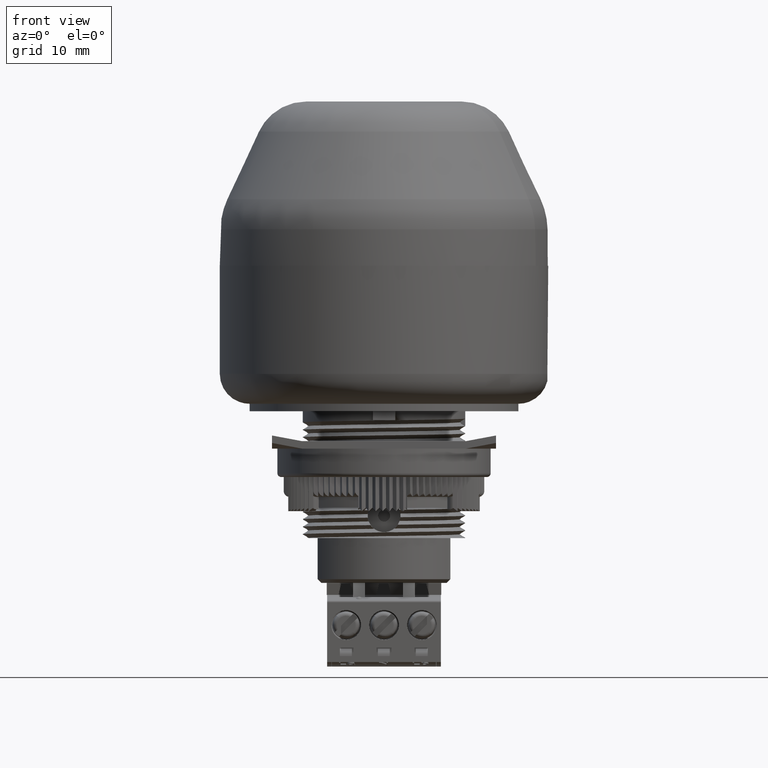
[diagram: clean part render]
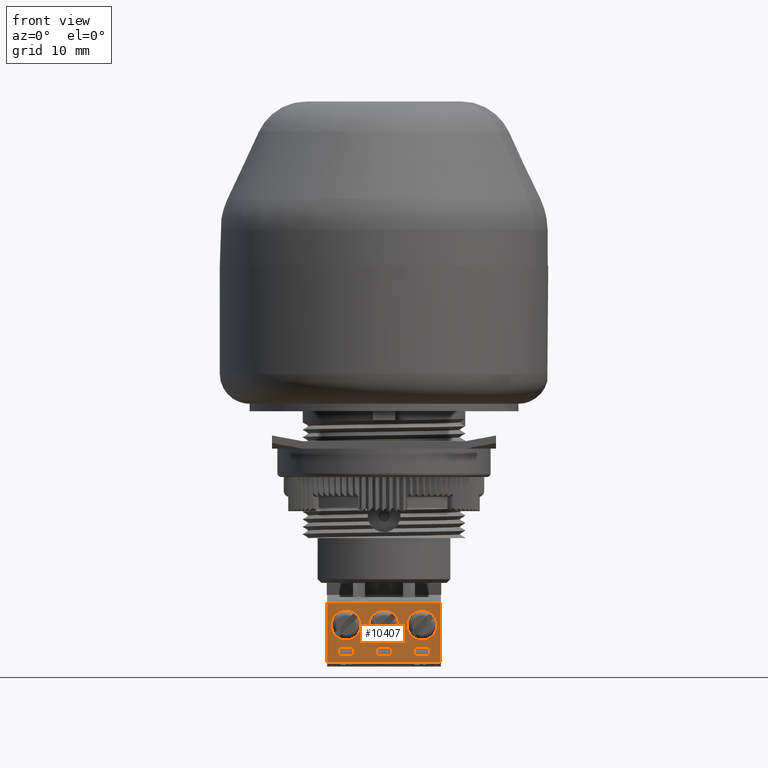
[diagram: same view with one face highlighted and labeled with its STEP entity id]
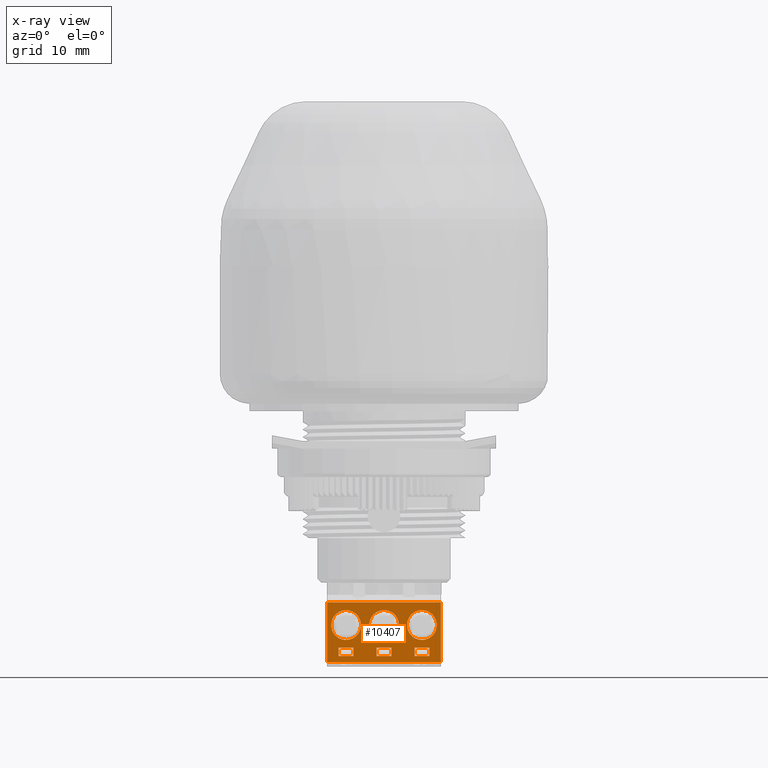
[diagram: x-ray of the same camera — body ghosted, the highlighted face saturated]
A machine part, front view. The second image highlights one B-rep face of the part: STEP entity #10407.
The next image is the same camera in x-ray: the body ghosted, the highlighted face saturated — about 0% of this face is hidden behind the body in this view.
In plain terms, the highlighted planar face has unit normal (0, -1, 0).
Its self-contained STEP definition (entity closure, byte-faithful):
#3848=LINE('',#50492,#7061);
#3856=LINE('',#50509,#7069);
#3864=LINE('',#50526,#7077);
#3953=LINE('',#51439,#7166);
#3955=LINE('',#51445,#7168);
#3956=LINE('',#51449,#7169);
#4190=LINE('',#52024,#7403);
#4191=LINE('',#52033,#7404);
#4192=LINE('',#52036,#7405);
#4193=LINE('',#52037,#7406);
#4194=LINE('',#52038,#7407);
#4195=LINE('',#52041,#7408);
#4196=LINE('',#52042,#7409);
#4197=LINE('',#52043,#7410);
#4198=LINE('',#52046,#7411);
#4199=LINE('',#52047,#7412);
#7061=VECTOR('',#38982,1.);
#7069=VECTOR('',#38992,1.);
#7077=VECTOR('',#39002,1.);
#7166=VECTOR('',#39291,1.);
#7168=VECTOR('',#39297,1.);
#7169=VECTOR('',#39302,1.);
#7403=VECTOR('',#39814,1.);
#7404=VECTOR('',#39823,1.);
#7405=VECTOR('',#39824,1.);
#7406=VECTOR('',#39825,1.);
#7407=VECTOR('',#39826,1.);
#7408=VECTOR('',#39827,1.);
#7409=VECTOR('',#39828,1.);
#7410=VECTOR('',#39829,1.);
#7411=VECTOR('',#39830,1.);
#7412=VECTOR('',#39831,1.);
#10407=ADVANCED_FACE('',(#12688,#12689,#12690,#12691,#12692,#12693,#12694),
#11938,.T.);
#11938=PLANE('',#34735);
#12688=FACE_BOUND('',#13503,.T.);
#12689=FACE_BOUND('',#13504,.T.);
#12690=FACE_BOUND('',#13505,.T.);
#12691=FACE_BOUND('',#13506,.T.);
#12692=FACE_BOUND('',#13507,.T.);
#12693=FACE_BOUND('',#13508,.T.);
#12694=FACE_BOUND('',#13509,.T.);
#13503=EDGE_LOOP('',(#18501,#18502,#18503,#18504));
#13504=EDGE_LOOP('',(#18505,#18506));
#13505=EDGE_LOOP('',(#18507,#18508));
#13506=EDGE_LOOP('',(#18509,#18510));
#13507=EDGE_LOOP('',(#18511,#18512,#18513,#18514));
#13508=EDGE_LOOP('',(#18515,#18516,#18517,#18518));
#13509=EDGE_LOOP('',(#18519,#18520,#18521,#18522));
#18501=ORIENTED_EDGE('',*,*,#29616,.T.);
#18502=ORIENTED_EDGE('',*,*,#29613,.T.);
#18503=ORIENTED_EDGE('',*,*,#29910,.T.);
#18504=ORIENTED_EDGE('',*,*,#29618,.F.);
#18505=ORIENTED_EDGE('',*,*,#29909,.F.);
#18506=ORIENTED_EDGE('',*,*,#29907,.F.);
#18507=ORIENTED_EDGE('',*,*,#29911,.F.);
#18508=ORIENTED_EDGE('',*,*,#29912,.F.);
#18509=ORIENTED_EDGE('',*,*,#29913,.F.);
#18510=ORIENTED_EDGE('',*,*,#29914,.F.);
#18511=ORIENTED_EDGE('',*,*,#29915,.F.);
#18512=ORIENTED_EDGE('',*,*,#29916,.F.);
#18513=ORIENTED_EDGE('',*,*,#29416,.F.);
#18514=ORIENTED_EDGE('',*,*,#29917,.F.);
#18515=ORIENTED_EDGE('',*,*,#29918,.F.);
#18516=ORIENTED_EDGE('',*,*,#29919,.F.);
#18517=ORIENTED_EDGE('',*,*,#29424,.F.);
#18518=ORIENTED_EDGE('',*,*,#29920,.F.);
#18519=ORIENTED_EDGE('',*,*,#29921,.F.);
#18520=ORIENTED_EDGE('',*,*,#29922,.F.);
#18521=ORIENTED_EDGE('',*,*,#29432,.F.);
#18522=ORIENTED_EDGE('',*,*,#29923,.F.);
#25629=VERTEX_POINT('',#50491);
#25630=VERTEX_POINT('',#50493);
#25637=VERTEX_POINT('',#50508);
#25638=VERTEX_POINT('',#50510);
#25645=VERTEX_POINT('',#50525);
#25646=VERTEX_POINT('',#50527);
#25808=VERTEX_POINT('',#51438);
#25809=VERTEX_POINT('',#51440);
#25811=VERTEX_POINT('',#51446);
#25812=VERTEX_POINT('',#51450);
#26002=VERTEX_POINT('',#52017);
#26003=VERTEX_POINT('',#52019);
#26004=VERTEX_POINT('',#52026);
#26005=VERTEX_POINT('',#52027);
#26006=VERTEX_POINT('',#52030);
#26007=VERTEX_POINT('',#52031);
#26008=VERTEX_POINT('',#52034);
#26009=VERTEX_POINT('',#52035);
#26010=VERTEX_POINT('',#52039);
#26011=VERTEX_POINT('',#52040);
#26012=VERTEX_POINT('',#52044);
#26013=VERTEX_POINT('',#52045);
#29416=EDGE_CURVE('',#25629,#25630,#3848,.T.);
#29424=EDGE_CURVE('',#25637,#25638,#3856,.T.);
#29432=EDGE_CURVE('',#25645,#25646,#3864,.T.);
#29613=EDGE_CURVE('',#25809,#25808,#3953,.T.);
#29616=EDGE_CURVE('',#25811,#25809,#3955,.T.);
#29618=EDGE_CURVE('',#25811,#25812,#3956,.T.);
#29907=EDGE_CURVE('',#26002,#26003,#33190,.T.);
#29909=EDGE_CURVE('',#26003,#26002,#33191,.T.);
#29910=EDGE_CURVE('',#25808,#25812,#4190,.T.);
#29911=EDGE_CURVE('',#26004,#26005,#33192,.T.);
#29912=EDGE_CURVE('',#26005,#26004,#33193,.T.);
#29913=EDGE_CURVE('',#26006,#26007,#33194,.T.);
#29914=EDGE_CURVE('',#26007,#26006,#33195,.T.);
#29915=EDGE_CURVE('',#26008,#26009,#4191,.T.);
#29916=EDGE_CURVE('',#25630,#26008,#4192,.T.);
#29917=EDGE_CURVE('',#26009,#25629,#4193,.T.);
#29918=EDGE_CURVE('',#26010,#26011,#4194,.T.);
#29919=EDGE_CURVE('',#25638,#26010,#4195,.T.);
#29920=EDGE_CURVE('',#26011,#25637,#4196,.T.);
#29921=EDGE_CURVE('',#26012,#26013,#4197,.T.);
#29922=EDGE_CURVE('',#25646,#26012,#4198,.T.);
#29923=EDGE_CURVE('',#26013,#25645,#4199,.T.);
#33190=CIRCLE('',#34727,2.);
#33191=CIRCLE('',#34729,2.);
#33192=CIRCLE('',#34731,2.);
#33193=CIRCLE('',#34732,2.);
#33194=CIRCLE('',#34733,2.);
#33195=CIRCLE('',#34734,2.);
#34727=AXIS2_PLACEMENT_3D('',#52018,#39805,#39806);
#34729=AXIS2_PLACEMENT_3D('',#52022,#39810,#39811);
#34731=AXIS2_PLACEMENT_3D('',#52025,#39815,#39816);
#34732=AXIS2_PLACEMENT_3D('',#52028,#39817,#39818);
#34733=AXIS2_PLACEMENT_3D('',#52029,#39819,#39820);
#34734=AXIS2_PLACEMENT_3D('',#52032,#39821,#39822);
#34735=AXIS2_PLACEMENT_3D('',#52048,#39832,#39833);
#38982=DIRECTION('',(1.,0.,0.));
#38992=DIRECTION('',(1.,0.,0.));
#39002=DIRECTION('',(1.,0.,0.));
#39291=DIRECTION('',(0.,0.,-1.));
#39297=DIRECTION('',(-1.,0.,0.));
#39302=DIRECTION('',(0.,0.,-1.));
#39805=DIRECTION('',(0.,-1.,0.));
#39806=DIRECTION('',(0.,0.,1.));
#39810=DIRECTION('',(0.,-1.,0.));
#39811=DIRECTION('',(0.,0.,-1.));
#39814=DIRECTION('',(1.,0.,0.));
#39815=DIRECTION('',(0.,-1.,0.));
#39816=DIRECTION('',(0.,0.,-1.));
#39817=DIRECTION('',(0.,-1.,0.));
#39818=DIRECTION('',(0.,0.,1.));
#39819=DIRECTION('',(0.,-1.,0.));
#39820=DIRECTION('',(0.,0.,-1.));
#39821=DIRECTION('',(0.,-1.,0.));
#39822=DIRECTION('',(0.,0.,1.));
#39823=DIRECTION('',(-1.,0.,0.));
#39824=DIRECTION('',(0.,0.,1.));
#39825=DIRECTION('',(0.,0.,-1.));
#39826=DIRECTION('',(-1.,0.,0.));
#39827=DIRECTION('',(0.,0.,1.));
#39828=DIRECTION('',(0.,0.,-1.));
#39829=DIRECTION('',(-1.,0.,0.));
#39830=DIRECTION('',(0.,0.,1.));
#39831=DIRECTION('',(0.,0.,-1.));
#39832=DIRECTION('',(0.,-1.,0.));
#39833=DIRECTION('',(-1.,0.,0.));
#50491=CARTESIAN_POINT('',(-5.08889642437541,-9.16671985531839,-53.9019902289782));
#50492=CARTESIAN_POINT('',(-5.08889642437541,-9.16671985531839,-53.9019902289782));
#50493=CARTESIAN_POINT('',(-3.08889642437541,-9.16671985531839,-53.9019902289782));
#50508=CARTESIAN_POINT('',(-0.00889642437540612,-9.16671985531839,-53.9019902289782));
#50509=CARTESIAN_POINT('',(-0.00889642437540612,-9.16671985531839,-53.9019902289782));
#50510=CARTESIAN_POINT('',(1.99110357562459,-9.16671985531839,-53.9019902289782));
#50525=CARTESIAN_POINT('',(5.07110357562459,-9.16671985531839,-53.9019902289782));
#50526=CARTESIAN_POINT('',(5.07110357562459,-9.16671985531839,-53.9019902289782));
#50527=CARTESIAN_POINT('',(7.07110357562459,-9.16671985531839,-53.9019902289782));
#51438=CARTESIAN_POINT('',(-6.62889642437541,-9.16671985531839,-54.7019902289782));
#51439=CARTESIAN_POINT('',(-6.62889642437541,-9.16671985531839,-46.7019902289782));
#51440=CARTESIAN_POINT('',(-6.62889642437541,-9.16671985531839,-46.7019902289782));
#51445=CARTESIAN_POINT('',(8.61110357562459,-9.16671985531839,-46.7019902289782));
#51446=CARTESIAN_POINT('',(8.61110357562459,-9.16671985531839,-46.7019902289782));
#51449=CARTESIAN_POINT('',(8.61110357562459,-9.16671985531839,-46.7019902289782));
#51450=CARTESIAN_POINT('',(8.61110357562459,-9.16671985531839,-54.7019902289782));
#52017=CARTESIAN_POINT('',(-4.08889642437541,-9.16671985531839,-47.7519902289782));
#52018=CARTESIAN_POINT('',(-4.08889642437541,-9.16671985531839,-49.7519902289782));
#52019=CARTESIAN_POINT('',(-4.08889642437541,-9.16671985531839,-51.7519902289782));
#52022=CARTESIAN_POINT('',(-4.08889642437541,-9.16671985531839,-49.7519902289782));
#52024=CARTESIAN_POINT('',(-6.62889642437541,-9.16671985531839,-54.7019902289782));
#52025=CARTESIAN_POINT('',(0.991103575624588,-9.16671985531839,-49.7519902289782));
#52026=CARTESIAN_POINT('',(0.991103575624588,-9.16671985531839,-51.7519902289782));
#52027=CARTESIAN_POINT('',(0.991103575624588,-9.16671985531839,-47.7519902289782));
#52028=CARTESIAN_POINT('',(0.991103575624588,-9.16671985531839,-49.7519902289782));
#52029=CARTESIAN_POINT('',(6.07110357562458,-9.16671985531839,-49.7519902289782));
#52030=CARTESIAN_POINT('',(6.07110357562458,-9.16671985531839,-51.7519902289782));
#52031=CARTESIAN_POINT('',(6.07110357562458,-9.16671985531839,-47.7519902289782));
#52032=CARTESIAN_POINT('',(6.07110357562458,-9.16671985531839,-49.7519902289782));
#52033=CARTESIAN_POINT('',(-3.08889642437541,-9.16671985531839,-52.8019902289782));
#52034=CARTESIAN_POINT('',(-3.08889642437541,-9.16671985531839,-52.8019902289782));
#52035=CARTESIAN_POINT('',(-5.08889642437541,-9.16671985531839,-52.8019902289782));
#52036=CARTESIAN_POINT('',(-3.08889642437541,-9.16671985531839,-53.9019902289782));
#52037=CARTESIAN_POINT('',(-5.08889642437541,-9.16671985531839,-52.8019902289782));
#52038=CARTESIAN_POINT('',(1.99110357562459,-9.16671985531839,-52.8019902289782));
#52039=CARTESIAN_POINT('',(1.99110357562459,-9.16671985531839,-52.8019902289782));
#52040=CARTESIAN_POINT('',(-0.00889642437540612,-9.16671985531839,-52.8019902289782));
#52041=CARTESIAN_POINT('',(1.99110357562459,-9.16671985531839,-53.9019902289782));
#52042=CARTESIAN_POINT('',(-0.00889642437540612,-9.16671985531839,-52.8019902289782));
#52043=CARTESIAN_POINT('',(7.07110357562459,-9.16671985531839,-52.8019902289782));
#52044=CARTESIAN_POINT('',(7.07110357562459,-9.16671985531839,-52.8019902289782));
#52045=CARTESIAN_POINT('',(5.07110357562459,-9.16671985531839,-52.8019902289782));
#52046=CARTESIAN_POINT('',(7.07110357562459,-9.16671985531839,-53.9019902289782));
#52047=CARTESIAN_POINT('',(5.07110357562459,-9.16671985531839,-52.8019902289782));
#52048=CARTESIAN_POINT('',(-7.39089642437541,-9.16671985531839,-46.3019902289782));